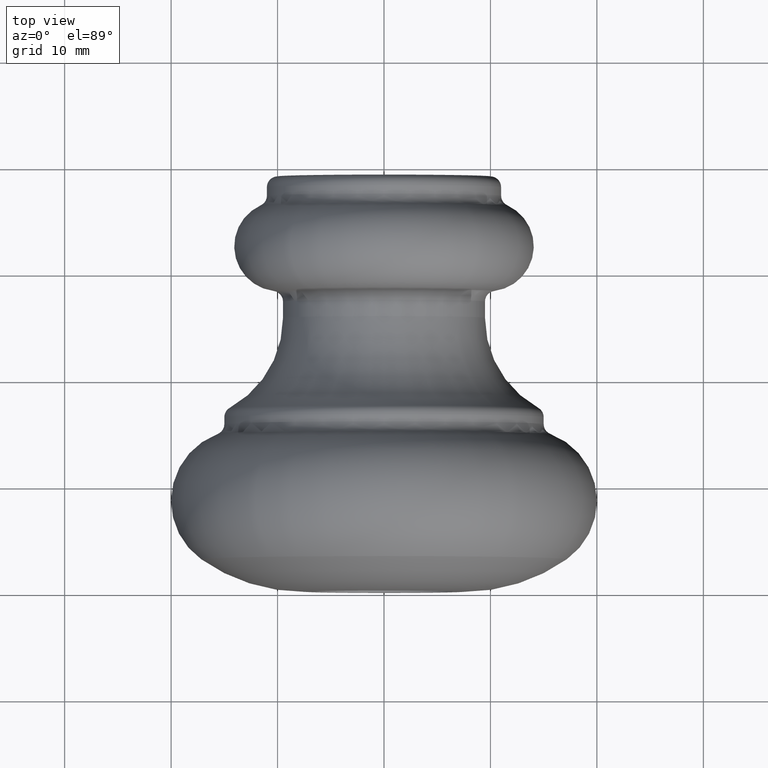
[diagram: clean part render]
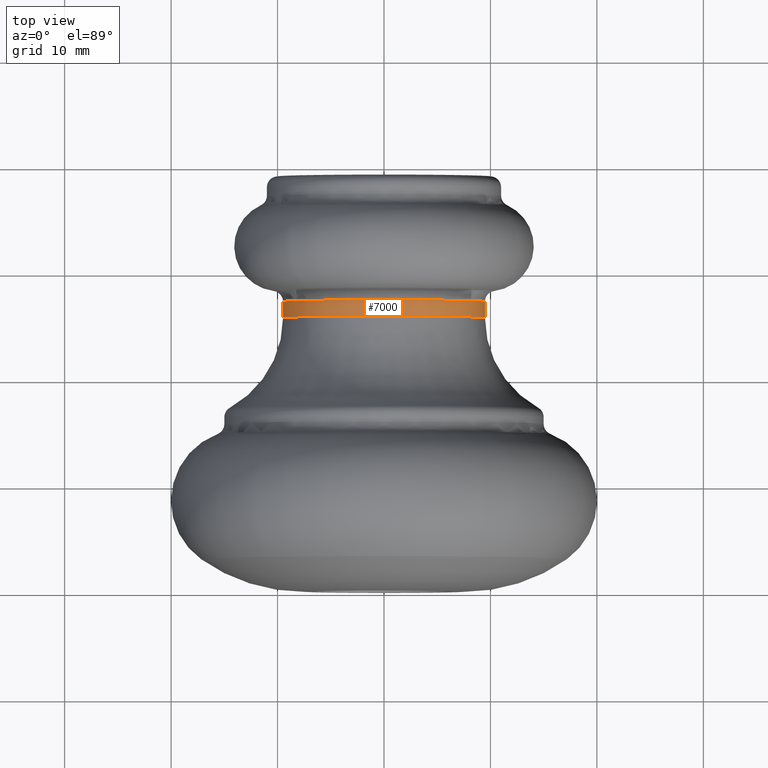
[diagram: same view with one face highlighted and labeled with its STEP entity id]
A machine part, top view. The second image highlights one B-rep face of the part: STEP entity #7000.
In plain terms, the highlighted cylindrical surface (partial cylindrical patch) has radius 9.4866 mm, axis along (0, 1, -0).
Its self-contained STEP definition (entity closure, byte-faithful):
#51 = DIRECTION ( 'NONE',  ( -3.140119997813719199E-18, -1.000000000000000000, 0.000000000000000000 ) ) ;
#250 = FACE_OUTER_BOUND ( 'NONE', #10283, .T. ) ;
#310 = CIRCLE ( 'NONE', #4942, 9.486609810115965047 ) ;
#1360 = VERTEX_POINT ( 'NONE', #8270 ) ;
#1421 = DIRECTION ( 'NONE',  ( 3.140119997813719199E-18, 1.000000000000000000, -0.000000000000000000 ) ) ;
#1845 = LINE ( 'NONE', #8861, #5265 ) ;
#1977 = CIRCLE ( 'NONE', #7233, 9.486609810115965047 ) ;
#2251 = CARTESIAN_POINT ( 'NONE',  ( -9.486609810115965047, 27.24747080673393285, 0.000000000000000000 ) ) ;
#2762 = ORIENTED_EDGE ( 'NONE', *, *, #10373, .F. ) ;
#3327 = ORIENTED_EDGE ( 'NONE', *, *, #5197, .T. ) ;
#3341 = LINE ( 'NONE', #6574, #10794 ) ;
#4942 = AXIS2_PLACEMENT_3D ( 'NONE', #7812, #51, #10220 ) ;
#5197 = EDGE_CURVE ( 'NONE', #6168, #9027, #1977, .T. ) ;
#5265 = VECTOR ( 'NONE', #10543, 1000.000000000000000 ) ;
#5622 = CARTESIAN_POINT ( 'NONE',  ( 1.224646799147350495E-16, 39.00000000000000000, 0.000000000000000000 ) ) ;
#5786 = DIRECTION ( 'NONE',  ( 3.140119997813719199E-18, 1.000000000000000000, -0.000000000000000000 ) ) ;
#6057 = ORIENTED_EDGE ( 'NONE', *, *, #10870, .T. ) ;
#6168 = VERTEX_POINT ( 'NONE', #6595 ) ;
#6328 = CYLINDRICAL_SURFACE ( 'NONE', #7922, 9.486609810115965047 ) ;
#6574 = CARTESIAN_POINT ( 'NONE',  ( -9.486609810115965047, 39.00000000000000000, 0.000000000000000000 ) ) ;
#6595 = CARTESIAN_POINT ( 'NONE',  ( -9.486609810115965047, 25.72250081452922998, 0.000000000000000000 ) ) ;
#6880 = EDGE_CURVE ( 'NONE', #9027, #1360, #1845, .T. ) ;
#7000 = ADVANCED_FACE ( 'NONE', ( #250 ), #6328, .T. ) ;
#7002 = DIRECTION ( 'NONE',  ( -1.000000000000000000, 0.000000000000000000, 0.000000000000000000 ) ) ;
#7233 = AXIS2_PLACEMENT_3D ( 'NONE', #8758, #10397, #7002 ) ;
#7812 = CARTESIAN_POINT ( 'NONE',  ( 8.556032797007073217E-17, 27.24747080673393285, 0.000000000000000000 ) ) ;
#7922 = AXIS2_PLACEMENT_3D ( 'NONE', #5622, #1421, #10670 ) ;
#8270 = CARTESIAN_POINT ( 'NONE',  ( 9.486609810115965047, 27.24747080673393285, 1.161774633871839662E-15 ) ) ;
#8457 = ORIENTED_EDGE ( 'NONE', *, *, #6880, .T. ) ;
#8758 = CARTESIAN_POINT ( 'NONE',  ( 8.077173920148291842E-17, 25.72250081452922998, 0.000000000000000000 ) ) ;
#8861 = CARTESIAN_POINT ( 'NONE',  ( 9.486609810115965047, 39.00000000000000000, 1.161774633871839662E-15 ) ) ;
#9027 = VERTEX_POINT ( 'NONE', #11011 ) ;
#10220 = DIRECTION ( 'NONE',  ( -1.000000000000000000, 0.000000000000000000, 0.000000000000000000 ) ) ;
#10283 = EDGE_LOOP ( 'NONE', ( #3327, #8457, #6057, #2762 ) ) ;
#10298 = VERTEX_POINT ( 'NONE', #2251 ) ;
#10373 = EDGE_CURVE ( 'NONE', #6168, #10298, #3341, .T. ) ;
#10397 = DIRECTION ( 'NONE',  ( 3.140119997813719199E-18, 1.000000000000000000, -0.000000000000000000 ) ) ;
#10543 = DIRECTION ( 'NONE',  ( 3.140119997813719199E-18, 1.000000000000000000, -0.000000000000000000 ) ) ;
#10670 = DIRECTION ( 'NONE',  ( -1.000000000000000000, 0.000000000000000000, 0.000000000000000000 ) ) ;
#10794 = VECTOR ( 'NONE', #5786, 1000.000000000000000 ) ;
#10870 = EDGE_CURVE ( 'NONE', #1360, #10298, #310, .T. ) ;
#11011 = CARTESIAN_POINT ( 'NONE',  ( 9.486609810115965047, 25.72250081452922998, 1.467692263969244737E-15 ) ) ;